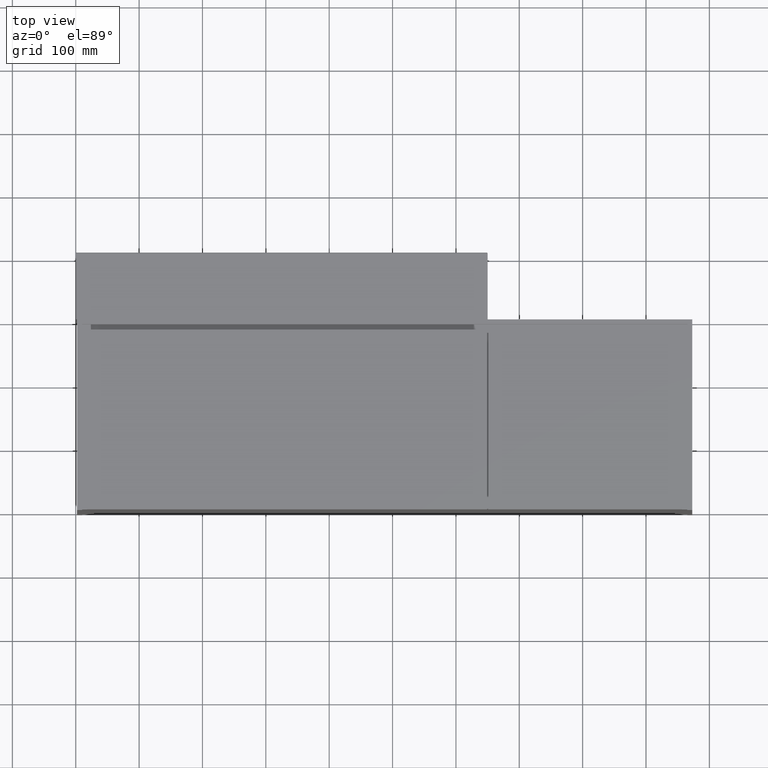
[diagram: clean part render]
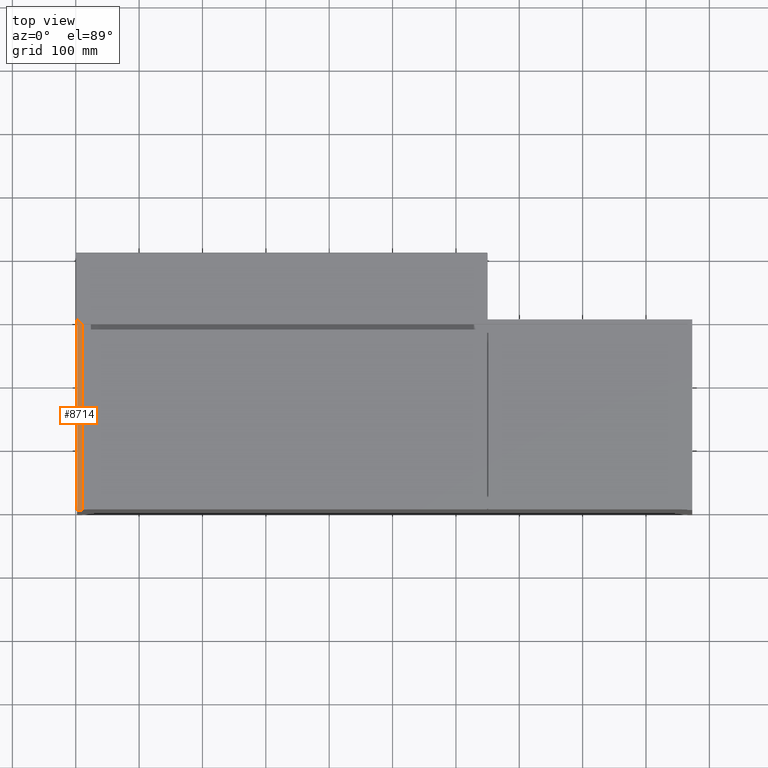
[diagram: same view with one face highlighted and labeled with its STEP entity id]
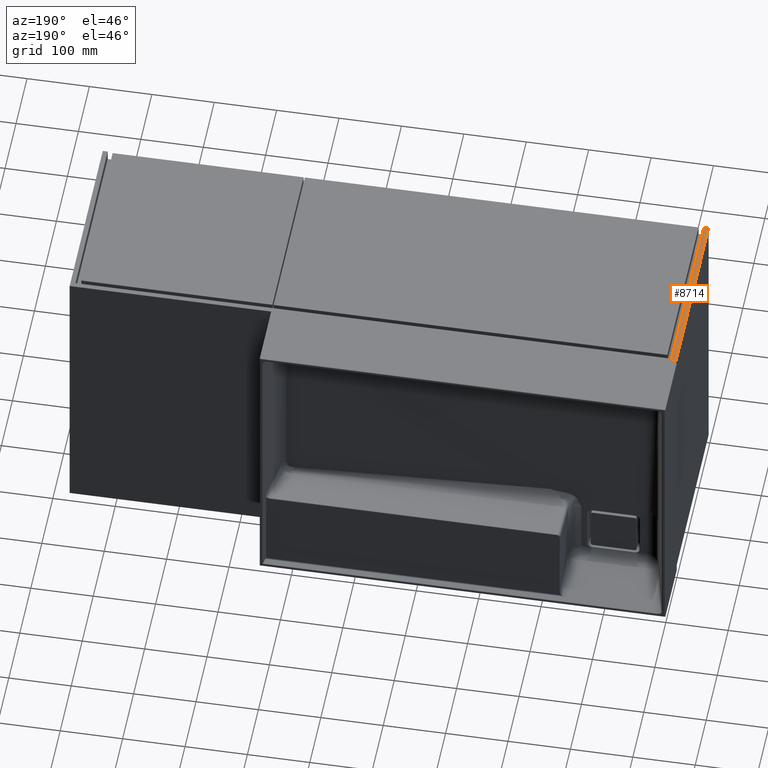
[diagram: same view with one face highlighted and labeled with its STEP entity id]
A machine part, top view. The second image highlights one B-rep face of the part: STEP entity #8714.
A second angle (auxiliary view) of the same face is appended — the face is thin or edge-on in the first view.
In plain terms, the highlighted planar face has unit normal (0, -0, 1).
Its self-contained STEP definition (entity closure, byte-faithful):
#1133 = DIRECTION ( 'NONE',  ( -1.267974440721797436E-16, 1.000000000000000000, -1.536109686581106896E-31 ) ) ;
#1593 = LINE ( 'NONE', #6471, #9461 ) ;
#1981 = VERTEX_POINT ( 'NONE', #3206 ) ;
#2190 = EDGE_CURVE ( 'NONE', #14795, #1981, #1593, .T. ) ;
#2276 = DIRECTION ( 'NONE',  ( 3.081487911019577365E-33, -1.565419932922250142E-31, 1.000000000000000000 ) ) ;
#2435 = EDGE_CURVE ( 'NONE', #1981, #7683, #4996, .T. ) ;
#2460 = VECTOR ( 'NONE', #4626, 1000.000000000000000 ) ;
#3206 = CARTESIAN_POINT ( 'NONE',  ( 2.000000000000091038, -0.9999999999999731326, 0.0000000000000000000 ) ) ;
#3326 = ORIENTED_EDGE ( 'NONE', *, *, #2190, .T. ) ;
#3475 = FACE_OUTER_BOUND ( 'NONE', #14921, .T. ) ;
#4131 = CARTESIAN_POINT ( 'NONE',  ( 2.000000000000054623, 300.0000000000000000, 0.0000000000000000000 ) ) ;
#4563 = CARTESIAN_POINT ( 'NONE',  ( 10.00000000000005507, 292.0000000000000000, 0.0000000000000000000 ) ) ;
#4626 = DIRECTION ( 'NONE',  ( -0.7071067811865473507, 0.7071067811865477948, -2.680894482587032307E-31 ) ) ;
#4996 = LINE ( 'NONE', #9876, #14095 ) ;
#5551 = CARTESIAN_POINT ( 'NONE',  ( 10.00000000000009237, -1.000000000000000888, 0.0000000000000000000 ) ) ;
#5778 = AXIS2_PLACEMENT_3D ( 'NONE', #13217, #2276, #7153 ) ;
#5853 = VECTOR ( 'NONE', #1133, 1000.000000000000000 ) ;
#6471 = CARTESIAN_POINT ( 'NONE',  ( 2.000000000000054623, 300.0000000000000000, 0.0000000000000000000 ) ) ;
#6808 = VERTEX_POINT ( 'NONE', #4563 ) ;
#7153 = DIRECTION ( 'NONE',  ( 1.000000000000000000, 0.0000000000000000000, -3.081487911019577365E-33 ) ) ;
#7207 = LINE ( 'NONE', #12075, #5853 ) ;
#7401 = ORIENTED_EDGE ( 'NONE', *, *, #9372, .T. ) ;
#7683 = VERTEX_POINT ( 'NONE', #5551 ) ;
#8349 = PLANE ( 'NONE',  #5778 ) ;
#8714 = ADVANCED_FACE ( 'NONE', ( #3475 ), #8349, .T. ) ;
#9372 = EDGE_CURVE ( 'NONE', #6808, #14795, #10695, .T. ) ;
#9461 = VECTOR ( 'NONE', #11345, 1000.000000000000000 ) ;
#9876 = CARTESIAN_POINT ( 'NONE',  ( 2.000000000000091038, -0.9999999999999731326, 0.0000000000000000000 ) ) ;
#10695 = LINE ( 'NONE', #15563, #2460 ) ;
#11345 = DIRECTION ( 'NONE',  ( 1.239243083150931568E-16, -1.000000000000000000, 1.536771724999490008E-31 ) ) ;
#11836 = ORIENTED_EDGE ( 'NONE', *, *, #13088, .T. ) ;
#12075 = CARTESIAN_POINT ( 'NONE',  ( 10.00000000000005329, 300.0000000000000000, 0.0000000000000000000 ) ) ;
#13088 = EDGE_CURVE ( 'NONE', #7683, #6808, #7207, .T. ) ;
#13133 = ORIENTED_EDGE ( 'NONE', *, *, #2435, .T. ) ;
#13217 = CARTESIAN_POINT ( 'NONE',  ( 8.673617379884035472E-16, -2.775557561562891351E-14, 0.0000000000000000000 ) ) ;
#14095 = VECTOR ( 'NONE', #14732, 1000.000000000000000 ) ;
#14732 = DIRECTION ( 'NONE',  ( 1.000000000000000000, 8.131516293641283255E-17, 0.0000000000000000000 ) ) ;
#14795 = VERTEX_POINT ( 'NONE', #4131 ) ;
#14921 = EDGE_LOOP ( 'NONE', ( #11836, #7401, #3326, #13133 ) ) ;
#15563 = CARTESIAN_POINT ( 'NONE',  ( 151.0000000000000284, 150.9999999999999432, 0.0000000000000000000 ) ) ;